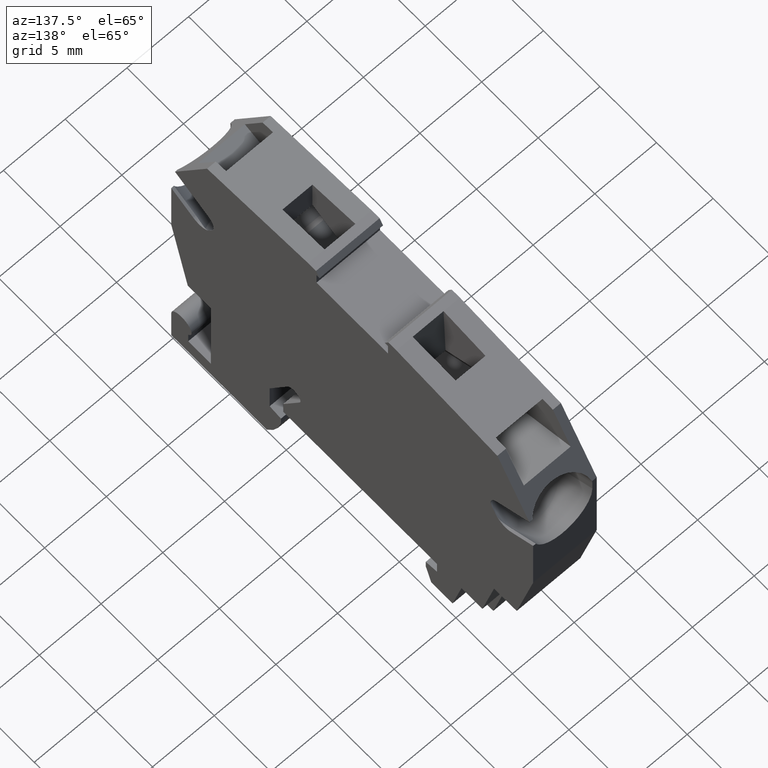
[diagram: clean part render]
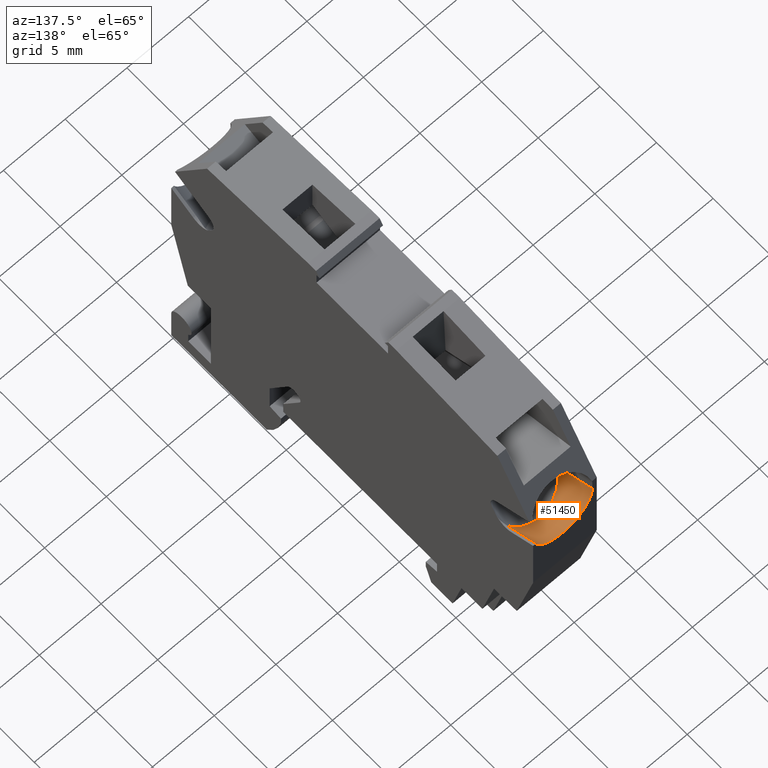
[diagram: same view with one face highlighted and labeled with its STEP entity id]
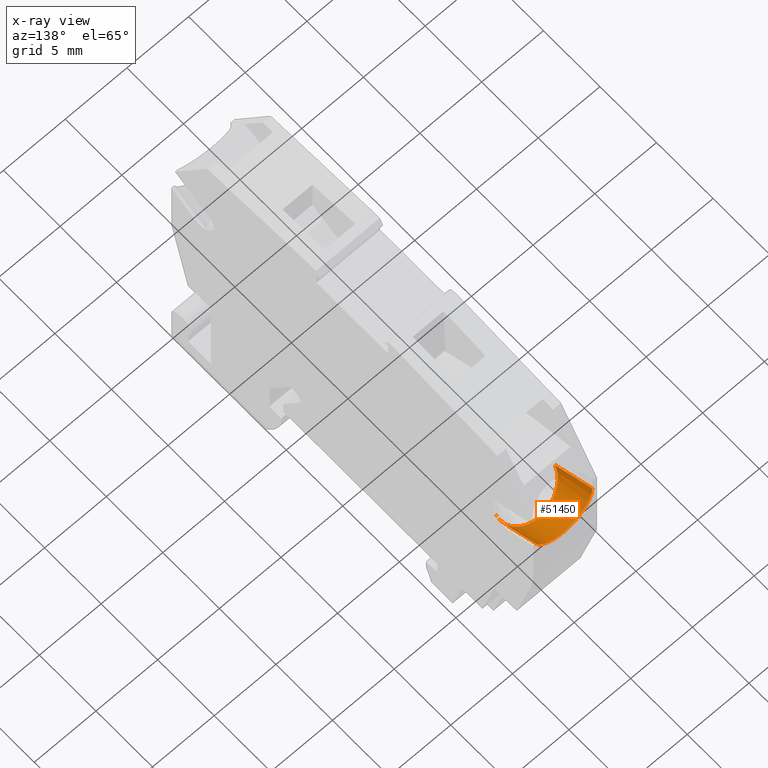
[diagram: x-ray of the same camera — body ghosted, the highlighted face saturated]
A machine part, auxiliary view. The second image highlights one B-rep face of the part: STEP entity #51450.
The next image is the same camera in x-ray: the body ghosted, the highlighted face saturated — about 2% of this face is hidden behind the body in this view.
In plain terms, the highlighted cylindrical surface (partial cylindrical patch) has radius 2.4 mm, axis along (0, 0.866, 0.5).
Its self-contained STEP definition (entity closure, byte-faithful):
#2400=CARTESIAN_POINT('',(66.1676224081499,109.561922686998,
4.74999999999983));
#2410=VERTEX_POINT('',#2400);
#50060=CARTESIAN_POINT('',(66.1676224081488,109.561922686997,
9.54999999999986));
#50070=VERTEX_POINT('',#50060);
#50100=CARTESIAN_POINT('',(66.1676224081496,109.561922686997,
7.14999999999986));
#50110=DIRECTION('',(0.866025403784999,0.49999999999903,
2.68852641531396E-13));
#50120=DIRECTION('',(-0.499999999999029,0.866025403784999,
1.44070206015495E-13));
#50130=AXIS2_PLACEMENT_3D('',#50100,#50110,#50120);
#50140=CIRCLE('',#50130,2.4);
#50150=EDGE_CURVE('',#50070,#2410,#50140,.T.);
#50280=CARTESIAN_POINT('',(63.5002641644918,108.021922687,
7.14999999999903));
#50290=DIRECTION('',(-0.866025403784999,-0.49999999999903,
-2.68852641531396E-13));
#50300=DIRECTION('',(-0.499999999999029,0.866025403784999,
1.44070206015495E-13));
#50310=AXIS2_PLACEMENT_3D('',#50280,#50290,#50300);
#50320=CYLINDRICAL_SURFACE('',#50310,2.4);
#50330=CARTESIAN_POINT('',(64.0002641644912,107.155897283216,
4.96825757707175));
#50340=DIRECTION('',(-0.866025403784999,-0.499999999999029,
-2.68852641531396E-13));
#50350=VECTOR('',#50340,1.);
#50360=LINE('',#50330,#50350);
#50370=CARTESIAN_POINT('',(65.801597004364,108.195897283214,
4.9682575770723));
#50380=VERTEX_POINT('',#50370);
#50390=CARTESIAN_POINT('',(63.8452959192272,107.066426325102,
4.96825757706988));
#50400=VERTEX_POINT('',#50390);
#50410=EDGE_CURVE('',#50380,#50400,#50360,.T.);
#50420=ORIENTED_EDGE('',*,*,#50410,.T.);
#50430=CARTESIAN_POINT('',(65.3015970043646,109.061922686999,
4.7499999999996));
#50440=DIRECTION('',(1.60798114433284E-13,2.59194779103394E-13,-1.));
#50450=DIRECTION('',(0.500000000001472,0.866025403783589,
3.04868320448494E-13));
#50460=AXIS2_PLACEMENT_3D('',#50430,#50440,#50450);
#50470=CYLINDRICAL_SURFACE('',#50460,1.);
#50480=CARTESIAN_POINT('',(66.1676224081496,109.561922686997,
7.14999999999986));
#50490=DIRECTION('',(0.866025403784999,0.499999999999029,
2.68852641531396E-13));
#50500=DIRECTION('',(-0.499999999999029,0.866025403784999,
1.44070206015495E-13));
#50510=AXIS2_PLACEMENT_3D('',#50480,#50490,#50500);
#50520=CYLINDRICAL_SURFACE('',#50510,2.4);
#50530=CARTESIAN_POINT('',(65.8015970043637,108.195897283214,
4.968257577072));
#50540=CARTESIAN_POINT('',(65.8158982067053,108.204154086236,
4.96825757707201));
#50550=CARTESIAN_POINT('',(65.8299324798204,108.212726511205,
4.9680709812867));
#50560=CARTESIAN_POINT('',(65.8438033910311,108.221677345294,
4.96769743276456));
#50570=CARTESIAN_POINT('',(65.8576691980072,108.230624885644,
4.96732402170124));
#50580=CARTESIAN_POINT('',(65.8713391265292,108.23993250519,
4.96676348116938));
#50590=CARTESIAN_POINT('',(65.8847843523526,108.249585000353,
4.96601774650974));
#50600=CARTESIAN_POINT('',(65.8982295154702,108.259237450498,
4.96527201532806));
#50610=CARTESIAN_POINT('',(65.9114496439628,108.269234572723,
4.96434110044274));
#50620=CARTESIAN_POINT('',(65.9244163617181,108.279557012838,
4.96323032210378));
#50630=CARTESIAN_POINT('',(65.937383048487,108.289879428285,
4.96211954641924));
#50640=CARTESIAN_POINT('',(65.9500960113327,108.300526927994,
4.96082893984876));
#50650=CARTESIAN_POINT('',(65.9625286158216,108.311476549707,
4.95936715499907));
#50660=CARTESIAN_POINT('',(65.9749612158978,108.322426167534,
4.95790537066822));
#50670=CARTESIAN_POINT('',(65.9871131762039,108.333677657313,
4.95627245926185));
#50680=CARTESIAN_POINT('',(65.9989606082093,108.34520516661,
4.9544801318521));
#50690=CARTESIAN_POINT('',(66.0108080581913,108.356732693398,
4.95268780172276));
#50700=CARTESIAN_POINT('',(66.0223507384198,108.368535985577,
4.95073612061146));
#50710=CARTESIAN_POINT('',(66.0335682377415,108.380587150345,
4.94863940378398));
#50720=CARTESIAN_POINT('',(66.0447857742215,108.392638355032,
4.94654268001108));
#50730=CARTESIAN_POINT('',(66.0556779323701,108.40493718435,
4.94430099400167));
#50740=CARTESIAN_POINT('',(66.0662282631931,108.417454659846,
4.94193067656866));
#50750=CARTESIAN_POINT('',(66.0767792325219,108.4299728929,
4.93956021568407));
#50760=CARTESIAN_POINT('',(66.0869858028688,108.442706454589,
4.93706181153045));
#50770=CARTESIAN_POINT('',(66.0968425404249,108.455635183107,
4.9344513529001));
#50780=CARTESIAN_POINT('',(66.1165690943338,108.48150979513,
4.9292269718506));
#50790=CARTESIAN_POINT('',(66.1350662008377,108.508395295853,
4.92350621675064));
#50800=CARTESIAN_POINT('',(66.1522126484574,108.536134682168,
4.91741198331446));
#50810=CARTESIAN_POINT('',(66.1693588374979,108.563873650156,
4.91131784178313));
#50820=CARTESIAN_POINT('',(66.1851512686078,108.592462036027,
4.90485176016511));
#50830=CARTESIAN_POINT('',(66.1994931198458,108.621715274743,
4.89815563128104));
#50840=CARTESIAN_POINT('',(66.2138349645974,108.650968500229,
4.89145950542544));
#50850=CARTESIAN_POINT('',(66.2267240210641,108.680882024615,
4.88453499320454));
#50860=CARTESIAN_POINT('',(66.2380976227526,108.711256760853,
4.87753108895591));
#50870=CARTESIAN_POINT('',(66.2494713837626,108.741631922581,
4.87052708659651));
#50880=CARTESIAN_POINT('',(66.259328268635,108.772463694495,
4.86344529799775));
#50890=CARTESIAN_POINT('',(66.2676431284768,108.803553017557,
4.85642959583172));
#50900=CARTESIAN_POINT('',(66.2759592647052,108.834647113038,
4.84941281670851));
#50910=CARTESIAN_POINT('',(66.2828139790236,108.866302412079,
4.84239317854692));
#50920=CARTESIAN_POINT('',(66.2881251499718,108.89833106762,
4.83551236533489));
#50930=CARTESIAN_POINT('',(66.2934362508971,108.930359300893,
4.82863164284008));
#50940=CARTESIAN_POINT('',(66.2972026302185,108.962755964254,
4.82189134728666));
#50950=CARTESIAN_POINT('',(66.299376027765,108.995311723224,
4.81542877085628));
#50960=CARTESIAN_POINT('',(66.3015494277252,109.027867518349,
4.80896618724909));
#50970=CARTESIAN_POINT('',(66.3021294051048,109.060576741786,
4.80278289993911));
#50980=CARTESIAN_POINT('',(66.3011069945319,109.093224117809,
4.79700092193775));
#50990=CARTESIAN_POINT('',(66.3000845668969,109.125872038652,
4.7912188474466));
#51000=CARTESIAN_POINT('',(66.2974602631867,109.158452028858,
4.78583940690118));
#51010=CARTESIAN_POINT('',(66.2932625106157,109.190761825897,
4.78096047741651));
#51020=CARTESIAN_POINT('',(66.2911640701211,109.206913370165,
4.77852151918168));
#51030=CARTESIAN_POINT('',(66.2886653446852,109.223055450816,
4.77619850967586));
#51040=CARTESIAN_POINT('',(66.2857656441107,109.239157244974,
4.77400470628745));
#51050=CARTESIAN_POINT('',(66.2828659616129,109.255258938753,
4.77181091657512));
#51060=CARTESIAN_POINT('',(66.2795653832509,109.27131976466,
4.76974643182209));
#51070=CARTESIAN_POINT('',(66.27586683166,109.28730747713,
4.76782293761005));
#51080=CARTESIAN_POINT('',(66.2721682811267,109.303295185028,
4.76589944394802));
#51090=CARTESIAN_POINT('',(66.2680718203919,109.319209487217,
4.76411698754784));
#51100=CARTESIAN_POINT('',(66.2635838363491,109.335018521989,
4.76248521522552));
#51110=CARTESIAN_POINT('',(66.2590958459436,109.350827579173,
4.76085344058984));
#51120=CARTESIAN_POINT('',(66.2542164230984,109.366531072391,
4.75937238607465));
#51130=CARTESIAN_POINT('',(66.2489551503981,109.382098487372,
4.75804942523352));
#51140=CARTESIAN_POINT('',(66.2384417016991,109.413206401388,
4.75540579094081));
#51150=CARTESIAN_POINT('',(66.2263661610419,109.443878871092,
4.7533855225178));
#51160=CARTESIAN_POINT('',(66.2127725542833,109.473941032744,
4.75203323594093));
#51170=CARTESIAN_POINT('',(66.2059775200258,109.488968201171,
4.75135726864404));
#51180=CARTESIAN_POINT('',(66.198807177359,109.503834360367,
4.75084830001906));
#51190=CARTESIAN_POINT('',(66.1912766821125,109.518507915629,
4.75050898591316));
#51200=CARTESIAN_POINT('',(66.1837457479068,109.533182326225,
4.75016965202834));
#51210=CARTESIAN_POINT('',(66.1758568084284,109.547660287346,
4.74999999999986));
#51220=CARTESIAN_POINT('',(66.16762240815,109.561922686998,
4.74999999999987));
#51230=B_SPLINE_CURVE_WITH_KNOTS('',3,(#50530,#50540,#50550,#50560,
#50570,#50580,#50590,#50600,#50610,#50620,#50630,#50640,#50650,#50660,
#50670,#50680,#50690,#50700,#50710,#50720,#50730,#50740,#50750,#50760,
#50770,#50780,#50790,#50800,#50810,#50820,#50830,#50840,#50850,#50860,
#50870,#50880,#50890,#50900,#50910,#50920,#50930,#50940,#50950,#50960,
#50970,#50980,#50990,#51000,#51010,#51020,#51030,#51040,#51050,#51060,
#51070,#51080,#51090,#51100,#51110,#51120,#51130,#51140,#51150,#51160,
#51170,#51180,#51190,#51200,#51210,#51220),.UNSPECIFIED.,.F.,.F.,(4,3,3,
3,3,3,3,3,3,3,3,3,3,3,3,3,3,3,3,3,3,3,3,4),(0.,0.0494662261203241,
0.0990817925598392,0.148855224811719,0.198724314437562,0.248618022546927
,0.298460366094843,0.348174031160877,0.397686184560075,0.496905628076327
,0.596596057701739,0.696300543126073,0.795518350675603,0.894752055819161
,0.994466197296105,1.09415288691304,1.19335301586377,1.24282250010802,
1.29237236202999,1.34193305594296,1.39143821909076,1.4903807003103,
1.53989016933187,1.58933923803271),.UNSPECIFIED.);
#51240=SURFACE_CURVE('',#51230,(#50470,#50520),.CURVE_3D.);
#51250=EDGE_CURVE('',#50380,#2410,#51240,.T.);
#51260=ORIENTED_EDGE('',*,*,#51250,.F.);
#51270=ORIENTED_EDGE('',*,*,#50150,.T.);
#51280=CARTESIAN_POINT('',(63.5002641644947,108.021922686998,
9.54999999999903));
#51290=DIRECTION('',(0.866025403784999,0.49999999999903,
2.68852641531396E-13));
#51300=VECTOR('',#51290,1.);
#51310=LINE('',#51280,#51300);
#51320=CARTESIAN_POINT('',(62.8452959192297,107.643776594291,
9.54999999999883));
#51330=VERTEX_POINT('',#51320);
#51340=EDGE_CURVE('',#51330,#50070,#51310,.T.);
#51350=ORIENTED_EDGE('',*,*,#51340,.T.);
#51360=CARTESIAN_POINT('',(62.8452959192316,107.64377659429,
7.14999999999883));
#51370=DIRECTION('',(0.500000000000517,0.86602540378414,
3.82523673593448E-18));
#51380=DIRECTION('',(0.86602540378414,-0.500000000000517,
5.37698657557926E-13));
#51390=AXIS2_PLACEMENT_3D('',#51360,#51370,#51380);
#51400=ELLIPSE('',#51390,2.77128129211104,2.4);
#51410=EDGE_CURVE('',#51330,#50400,#51400,.T.);
#51420=ORIENTED_EDGE('',*,*,#51410,.F.);
#51430=EDGE_LOOP('',(#51420,#51350,#51270,#51260,#50420));
#51440=FACE_OUTER_BOUND('',#51430,.T.);
#51450=ADVANCED_FACE('',(#51440),#50320,.F.);